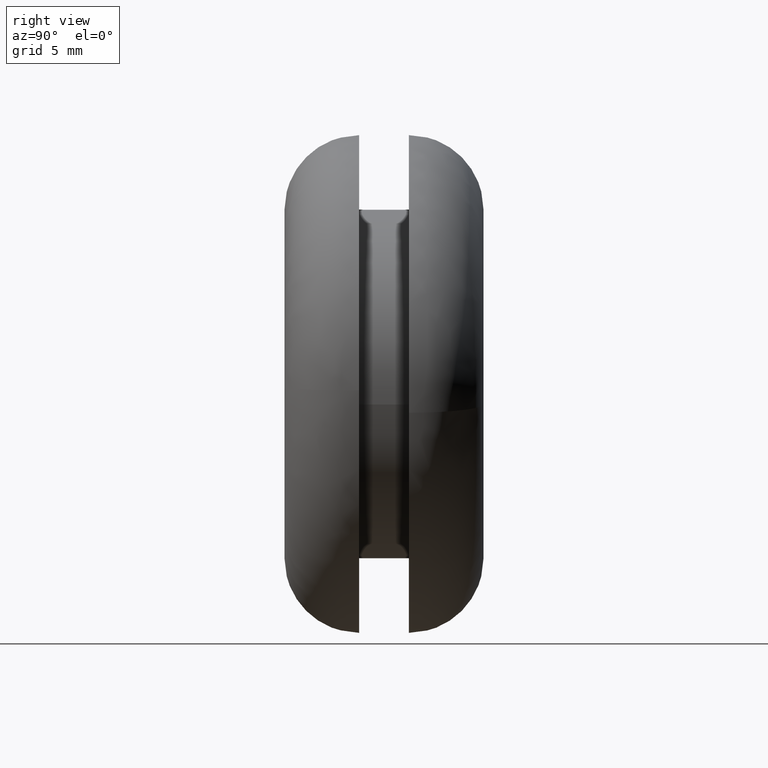
[diagram: clean part render]
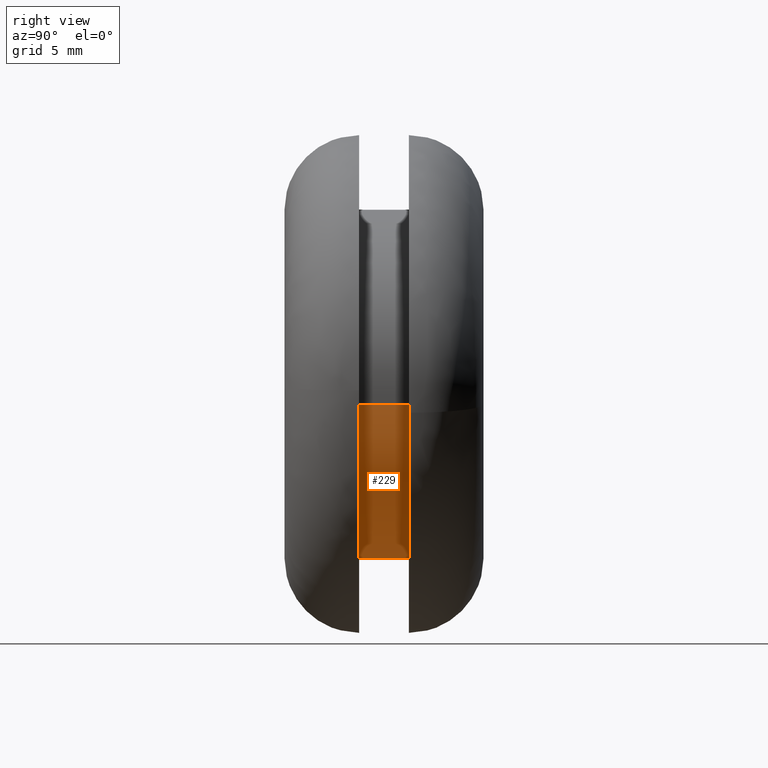
[diagram: same view with one face highlighted and labeled with its STEP entity id]
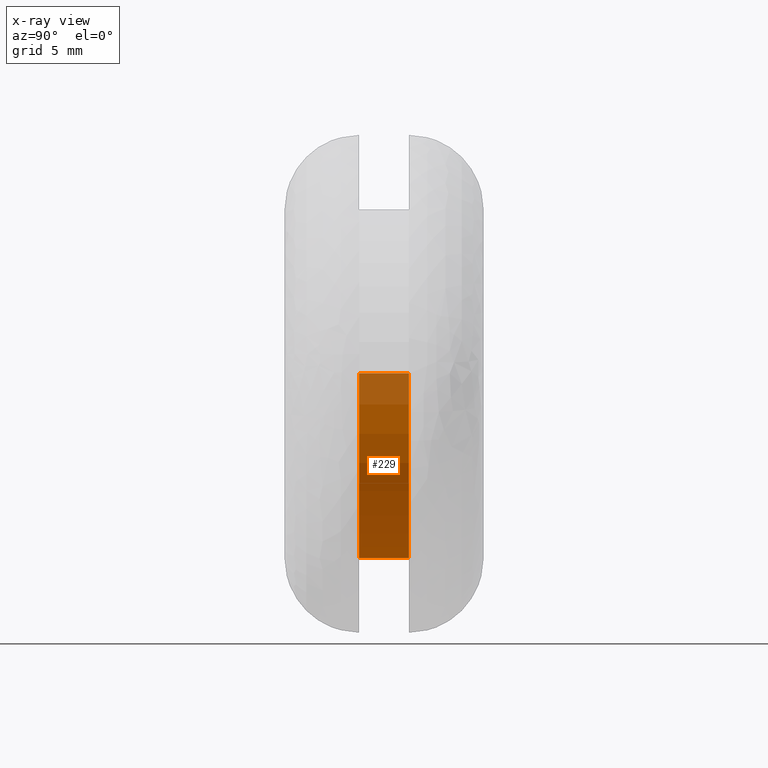
[diagram: x-ray of the same camera — body ghosted, the highlighted face saturated]
A machine part, right view. The second image highlights one B-rep face of the part: STEP entity #229.
The next image is the same camera in x-ray: the body ghosted, the highlighted face saturated — about 17% of this face is hidden behind the body in this view.
In plain terms, the highlighted face is a freeform B-spline surface patch.
Its self-contained STEP definition (entity closure, byte-faithful):
#66=CARTESIAN_POINT('',(6.951067166005178,2.999999999999949,-0.826235592109230));
#67=VERTEX_POINT('',#66);
#85=CARTESIAN_POINT('',(6.951067160060351,5.0,-0.826235642122928));
#86=VERTEX_POINT('',#85);
#87=CARTESIAN_POINT('',(6.951067160060351,5.0,-0.826235642122928));
#88=CARTESIAN_POINT('',(6.951067166005178,2.999999999999949,-0.826235592109230));
#89=QUASI_UNIFORM_CURVE('',1,(#87,#88),.UNSPECIFIED.,.F.,.U.);
#90=EDGE_CURVE('',#86,#67,#89,.T.);
#109=CARTESIAN_POINT('',(-6.986943966739478,5.0,0.427333599901195));
#110=VERTEX_POINT('',#109);
#124=CARTESIAN_POINT('',(-6.986943971456531,3.000000000000065,0.427333522775779));
#125=VERTEX_POINT('',#124);
#126=CARTESIAN_POINT('',(-6.986943966739478,5.0,0.427333599901195));
#127=CARTESIAN_POINT('',(-6.986943971456531,3.000000000000065,0.427333522775779));
#128=QUASI_UNIFORM_CURVE('',1,(#126,#127),.UNSPECIFIED.,.F.,.U.);
#129=EDGE_CURVE('',#110,#125,#128,.T.);
#147=CARTESIAN_POINT('',(-6.986943588953067,5.050000000000001,0.427339776743999));
#148=CARTESIAN_POINT('',(-7.414283365697066,5.050000000000001,-6.559603812209068));
#149=CARTESIAN_POINT('',(-0.427339776743999,5.050000000000001,-6.986943588953067));
#150=CARTESIAN_POINT('',(6.170804435876506,5.050000000000001,-7.390503377127691));
#151=CARTESIAN_POINT('',(6.951066684545665,5.050000000000002,-0.826239642597309));
#152=CARTESIAN_POINT('',(-6.986943588953067,2.948750000000000,0.427339776743999));
#153=CARTESIAN_POINT('',(-7.414283365697066,2.948750000000000,-6.559603812209068));
#154=CARTESIAN_POINT('',(-0.427339776743999,2.948750000000000,-6.986943588953067));
#155=CARTESIAN_POINT('',(6.170804435876506,2.948750000000000,-7.390503377127691));
#156=CARTESIAN_POINT('',(6.951066684545665,2.948750000000000,-0.826239642597309));
#164=(BOUNDED_SURFACE()B_SPLINE_SURFACE(2,1,((#147,#152),(#148,#153),(#149,#154),(#150,#155),(#151,#156)),.UNSPECIFIED.,.F.,.F.,.U.)B_SPLINE_SURFACE_WITH_KNOTS((3,2,3),(2,2),(0.0,11.597979746446660,22.732040303035451),(0.0,2.101250000000002),.UNSPECIFIED.)GEOMETRIC_REPRESENTATION_ITEM()RATIONAL_B_SPLINE_SURFACE(((1.0,1.0),(0.707106781186548,0.707106781186548),(1.0,1.0),(0.718822509939086,0.718822509939086),(0.977505800795127,0.977505800795127)))REPRESENTATION_ITEM('')SURFACE());
#165=CARTESIAN_POINT('',(0.0,3.0,-7.0));
#166=VERTEX_POINT('',#165);
#167=CARTESIAN_POINT('',(0.0,3.0,-7.0));
#168=CARTESIAN_POINT('',(6.217225330029973,3.000000000000001,-6.999999999999999));
#169=CARTESIAN_POINT('',(6.951067166005178,2.999999999999950,-0.826235592109230));
#177=(BOUNDED_CURVE()B_SPLINE_CURVE(2,(#167,#168,#169),.UNSPECIFIED.,.F.,.U.)B_SPLINE_CURVE_WITH_KNOTS((3,3),(0.0,0.229562571996310),.UNSPECIFIED.)CURVE()GEOMETRIC_REPRESENTATION_ITEM()RATIONAL_B_SPLINE_CURVE((1.0,0.731050717475624,0.956026947214111))REPRESENTATION_ITEM(''));
#178=EDGE_CURVE('',#166,#67,#177,.T.);
#179=ORIENTED_EDGE('',*,*,#178,.F.);
#180=CARTESIAN_POINT('',(-6.986943971456531,3.000000000000065,0.427333522775779));
#181=CARTESIAN_POINT('',(-7.000000000000001,3.000000000000000,0.213866207338468));
#182=CARTESIAN_POINT('',(-7.0,3.0,-1.836910E-016));
#183=CARTESIAN_POINT('',(-6.999999999999999,3.000000000000000,-6.999999999999999));
#184=CARTESIAN_POINT('',(0.0,3.0,-7.0));
#192=(BOUNDED_CURVE()B_SPLINE_CURVE(2,(#180,#181,#182,#183,#184),.UNSPECIFIED.,.F.,.U.)B_SPLINE_CURVE_WITH_KNOTS((3,2,3),(0.739333116687507,0.750000000000000,1.0),.UNSPECIFIED.)CURVE()GEOMETRIC_REPRESENTATION_ITEM()RATIONAL_B_SPLINE_CURVE((0.976072372679614,0.987502968847585,1.0,0.707106781186547,1.0))REPRESENTATION_ITEM(''));
#193=EDGE_CURVE('',#125,#166,#192,.T.);
#194=ORIENTED_EDGE('',*,*,#193,.F.);
#195=ORIENTED_EDGE('',*,*,#129,.F.);
#196=CARTESIAN_POINT('',(0.0,5.0,-7.0));
#197=VERTEX_POINT('',#196);
#198=CARTESIAN_POINT('',(-6.986943966739478,5.0,0.427333599901195));
#199=CARTESIAN_POINT('',(-7.000000000000001,5.0,0.213866246009296));
#200=CARTESIAN_POINT('',(-7.0,5.0,-1.836910E-016));
#201=CARTESIAN_POINT('',(-6.999999999999999,4.999999999999999,-6.999999999999999));
#202=CARTESIAN_POINT('',(0.0,5.0,-7.0));
#210=(BOUNDED_CURVE()B_SPLINE_CURVE(2,(#198,#199,#200,#201,#202),.UNSPECIFIED.,.F.,.U.)B_SPLINE_CURVE_WITH_KNOTS((3,2,3),(0.739333114782848,0.750000000000000,1.0),.UNSPECIFIED.)CURVE()GEOMETRIC_REPRESENTATION_ITEM()RATIONAL_B_SPLINE_CURVE((0.976072368597561,0.987502966616138,1.0,0.707106781186547,1.0))REPRESENTATION_ITEM(''));
#211=EDGE_CURVE('',#110,#197,#210,.T.);
#212=ORIENTED_EDGE('',*,*,#211,.T.);
#213=CARTESIAN_POINT('',(0.0,5.0,-7.0));
#214=CARTESIAN_POINT('',(6.217225284981444,5.0,-6.999999999999999));
#215=CARTESIAN_POINT('',(6.951067160060351,5.000000000000001,-0.826235642122928));
#223=(BOUNDED_CURVE()B_SPLINE_CURVE(2,(#213,#214,#215),.UNSPECIFIED.,.F.,.U.)B_SPLINE_CURVE_WITH_KNOTS((3,3),(0.0,0.229562570780312),.UNSPECIFIED.)CURVE()GEOMETRIC_REPRESENTATION_ITEM()RATIONAL_B_SPLINE_CURVE((1.0,0.731050718900253,0.956026944830704))REPRESENTATION_ITEM(''));
#224=EDGE_CURVE('',#197,#86,#223,.T.);
#225=ORIENTED_EDGE('',*,*,#224,.T.);
#226=ORIENTED_EDGE('',*,*,#90,.T.);
#227=EDGE_LOOP('',(#179,#194,#195,#212,#225,#226));
#228=FACE_OUTER_BOUND('',#227,.T.);
#229=ADVANCED_FACE('',(#228),#164,.T.);